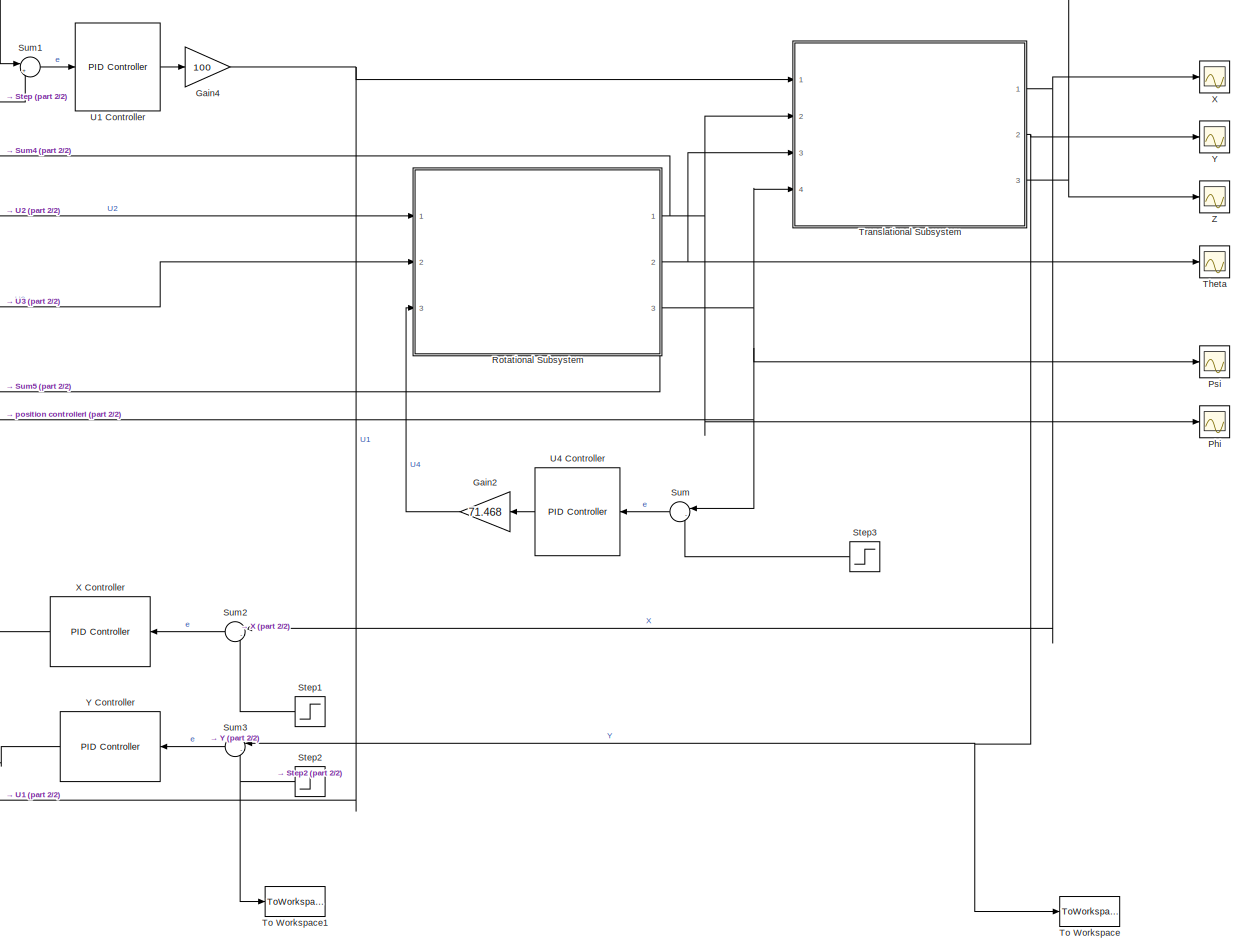
[diagram: root canvas - part 1/2, right side, full height]
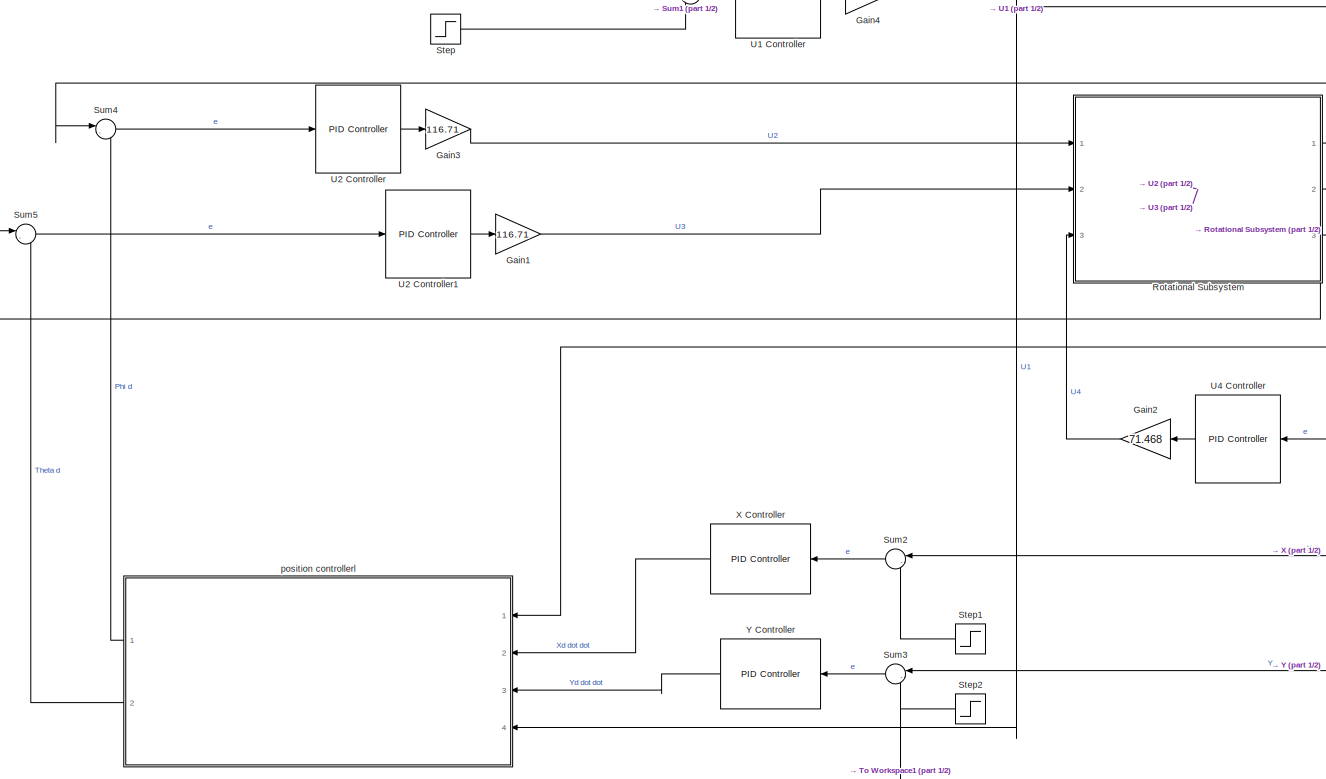
[diagram: root canvas - part 2/2, center side, full height]
MODEL slx_e11bd111b1ae
KIND model
CONFIG AbsTol = auto
CONFIG EnableMultiTasking = off
CONFIG FixedStep = auto
CONFIG MaxStep = auto
CONFIG MinStep = auto
CONFIG RelTol = 1e-3
CONFIG SampleTimeConstraint = Unconstrained
CONFIG Solver = VariableStepAuto
CONFIG SolverName = VariableStepAuto
CONFIG StartTime = 0.0
CONFIG StopTime = 10.0
BLOCK [Gain] Gain1
  Gain = 116.71
  OutDataTypeStr = Inherit: Inherit via internal rule
  ParamDataTypeStr = Inherit: Inherit via internal rule
  SaturateOnIntegerOverflow = off
BLOCK [Gain] Gain2
  Gain = 71.468
  OutDataTypeStr = Inherit: Inherit via internal rule
  ParamDataTypeStr = Inherit: Inherit via internal rule
  SaturateOnIntegerOverflow = off
BLOCK [Gain] Gain3
  Gain = 116.71
  OutDataTypeStr = Inherit: Inherit via internal rule
  ParamDataTypeStr = Inherit: Inherit via internal rule
  SaturateOnIntegerOverflow = off
BLOCK [Gain] Gain4
  Gain = 100
  OutDataTypeStr = Inherit: Inherit via internal rule
  ParamDataTypeStr = Inherit: Inherit via internal rule
  SaturateOnIntegerOverflow = off
BLOCK [Scope] Phi
  Floating = off
  NumInputPorts = 1
  Ports = [1]
  ScopeSpecificationString = Simulink.scopes.TimeScopeBlockCfg('CurrentConfiguration', extmgr.ConfigurationSet(extmgr.Configuration('Core','General UI',true),extmgr.Configuration('Core','Source UI',true),extmgr.Configuration('Sources','WiredSimulink',true,'DataLoggingVariableName','ScopeData5'),extmgr.Configuration('Visuals','Time Domain',true,'SerializedDisplays',{struct('MinYLimReal','-7.38737','MaxYLimReal','44.1708','YLab...<+1411ch>
BLOCK [Scope] Psi
  Floating = off
  NumInputPorts = 1
  Ports = [1]
  ScopeSpecificationString = Simulink.scopes.TimeScopeBlockCfg('CurrentConfiguration', extmgr.ConfigurationSet(extmgr.Configuration('Core','General UI',true),extmgr.Configuration('Core','Source UI',true),extmgr.Configuration('Sources','WiredSimulink',true,'DataLoggingVariableName','ScopeData3'),extmgr.Configuration('Visuals','Time Domain',true,'SerializedDisplays',{struct('MinYLimReal','-0.01254','MaxYLimReal','0.11284','YLab...<+1411ch>
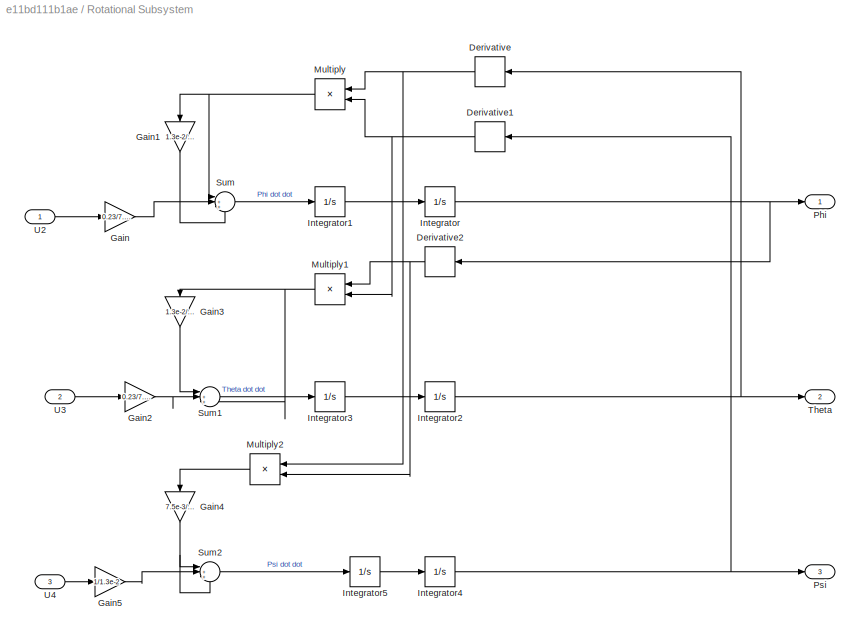
BLOCK [SubSystem] Rotational Subsystem 
  Ports = [3, 3]
  RequestExecContextInheritance = off
BLOCK [Derivative] Rotational Subsystem /Derivative
BLOCK [Derivative] Rotational Subsystem /Derivative1
BLOCK [Derivative] Rotational Subsystem /Derivative2
BLOCK [Gain] Rotational Subsystem /Gain
  Gain = 0.23/7.5e-3
  OutDataTypeStr = Inherit: Inherit via internal rule
  ParamDataTypeStr = Inherit: Inherit via internal rule
  SaturateOnIntegerOverflow = off
BLOCK [Gain] Rotational Subsystem /Gain1
  Gain = 1.3e-2/7.5e-3
  OutDataTypeStr = Inherit: Inherit via internal rule
  ParamDataTypeStr = Inherit: Inherit via internal rule
  SaturateOnIntegerOverflow = off
BLOCK [Gain] Rotational Subsystem /Gain2
  Gain = 0.23/7.5e-3
  OutDataTypeStr = Inherit: Inherit via internal rule
  ParamDataTypeStr = Inherit: Inherit via internal rule
  SaturateOnIntegerOverflow = off
BLOCK [Gain] Rotational Subsystem /Gain3
  Gain = 1.3e-2/7.5e-3
  OutDataTypeStr = Inherit: Inherit via internal rule
  ParamDataTypeStr = Inherit: Inherit via internal rule
  SaturateOnIntegerOverflow = off
BLOCK [Gain] Rotational Subsystem /Gain4
  Gain = 7.5e-3/1.3e-2
  OutDataTypeStr = Inherit: Inherit via internal rule
  ParamDataTypeStr = Inherit: Inherit via internal rule
  SaturateOnIntegerOverflow = off
BLOCK [Gain] Rotational Subsystem /Gain5
  Gain = 1/1.3e-2
  OutDataTypeStr = Inherit: Inherit via internal rule
  ParamDataTypeStr = Inherit: Inherit via internal rule
  SaturateOnIntegerOverflow = off
BLOCK [Integrator] Rotational Subsystem /Integrator
  Ports = [1, 1]
BLOCK [Integrator] Rotational Subsystem /Integrator1
  Ports = [1, 1]
BLOCK [Integrator] Rotational Subsystem /Integrator2
  Ports = [1, 1]
BLOCK [Integrator] Rotational Subsystem /Integrator3
  Ports = [1, 1]
BLOCK [Integrator] Rotational Subsystem /Integrator4
  Ports = [1, 1]
BLOCK [Integrator] Rotational Subsystem /Integrator5
  Ports = [1, 1]
BLOCK [Product] Rotational Subsystem /Multiply
  InputSameDT = off
  OutDataTypeStr = Inherit: Inherit via internal rule
  Ports = [2, 1]
  RndMeth = Floor
  SaturateOnIntegerOverflow = off
BLOCK [Product] Rotational Subsystem /Multiply1
  InputSameDT = off
  OutDataTypeStr = Inherit: Inherit via internal rule
  Ports = [2, 1]
  RndMeth = Floor
  SaturateOnIntegerOverflow = off
BLOCK [Product] Rotational Subsystem /Multiply2
  InputSameDT = off
  OutDataTypeStr = Inherit: Inherit via internal rule
  Ports = [2, 1]
  RndMeth = Floor
  SaturateOnIntegerOverflow = off
BLOCK [Outport] Rotational Subsystem /Phi
  IconDisplay = Port number
BLOCK [Outport] Rotational Subsystem /Psi 
  IconDisplay = Port number
  Port = 3
BLOCK [Sum] Rotational Subsystem /Sum
  IconShape = round
  InputSameDT = off
  Inputs = |++-
  OutDataTypeStr = Inherit: Inherit via internal rule
  Ports = [3, 1]
  SaturateOnIntegerOverflow = off
BLOCK [Sum] Rotational Subsystem /Sum1
  IconShape = round
  InputSameDT = off
  Inputs = |++-
  OutDataTypeStr = Inherit: Inherit via internal rule
  Ports = [3, 1]
  SaturateOnIntegerOverflow = off
BLOCK [Sum] Rotational Subsystem /Sum2
  IconShape = round
  InputSameDT = off
  Inputs = |++-
  OutDataTypeStr = Inherit: Inherit via internal rule
  Ports = [3, 1]
  SaturateOnIntegerOverflow = off
BLOCK [Outport] Rotational Subsystem /Theta
  IconDisplay = Port number
  Port = 2
BLOCK [Inport] Rotational Subsystem /U2
  IconDisplay = Port number
BLOCK [Inport] Rotational Subsystem /U3
  IconDisplay = Port number
  Port = 2
BLOCK [Inport] Rotational Subsystem /U4
  IconDisplay = Port number
  Port = 3
BLOCK [Step] Step
  After = -1
  SampleTime = 0
  Time = 0
BLOCK [Step] Step1
  SampleTime = 0
  Time = 0
BLOCK [Step] Step2
  SampleTime = 0
  Time = 0
BLOCK [Step] Step3
  After = .0872
  SampleTime = 0
  Time = 0
BLOCK [Sum] Sum
  IconShape = round
  InputSameDT = off
  Inputs = |-+
  OutDataTypeStr = Inherit: Inherit via internal rule
  Ports = [2, 1]
  SaturateOnIntegerOverflow = off
BLOCK [Sum] Sum1
  IconShape = round
  InputSameDT = off
  Inputs = |+-
  OutDataTypeStr = Inherit: Inherit via internal rule
  Ports = [2, 1]
  SaturateOnIntegerOverflow = off
BLOCK [Sum] Sum2
  IconShape = round
  InputSameDT = off
  Inputs = |-+
  OutDataTypeStr = Inherit: Inherit via internal rule
  Ports = [2, 1]
  SaturateOnIntegerOverflow = off
BLOCK [Sum] Sum3
  IconShape = round
  InputSameDT = off
  Inputs = |-+
  OutDataTypeStr = Inherit: Inherit via internal rule
  Ports = [2, 1]
  SaturateOnIntegerOverflow = off
BLOCK [Sum] Sum4
  IconShape = round
  InputSameDT = off
  Inputs = |-+
  OutDataTypeStr = Inherit: Inherit via internal rule
  Ports = [2, 1]
  SaturateOnIntegerOverflow = off
BLOCK [Sum] Sum5
  IconShape = round
  InputSameDT = off
  Inputs = |-+
  OutDataTypeStr = Inherit: Inherit via internal rule
  Ports = [2, 1]
  SaturateOnIntegerOverflow = off
BLOCK [Scope] Theta
  Floating = off
  NumInputPorts = 1
  Ports = [1]
  ScopeSpecificationString = Simulink.scopes.TimeScopeBlockCfg('CurrentConfiguration', extmgr.ConfigurationSet(extmgr.Configuration('Core','General UI',true),extmgr.Configuration('Core','Source UI',true),extmgr.Configuration('Sources','WiredSimulink',true,'DataLoggingVariableName','ScopeData4'),extmgr.Configuration('Visuals','Time Domain',true,'SerializedDisplays',{struct('MinYLimReal','-42.87973','MaxYLimReal','7.18185','YLa...<+1415ch>
BLOCK [ToWorkspace] To Workspace
  FixptAsFi = on
  MaxDataPoints = inf
  Ports = [1]
  SampleTime = -1
  Save2DSignal = 3-D array (concatenate along third dimension)
  VariableName = y_out
BLOCK [ToWorkspace] To Workspace1
  FixptAsFi = on
  MaxDataPoints = inf
  Ports = [1]
  SampleTime = -1
  Save2DSignal = 3-D array (concatenate along third dimension)
  VariableName = y_desired
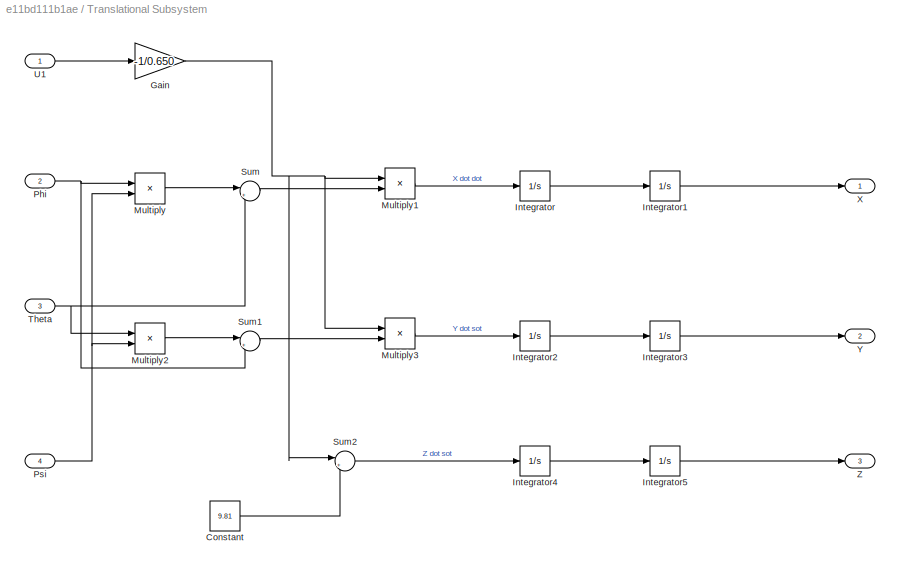
BLOCK [SubSystem] Translational Subsystem 
  Ports = [4, 3]
  RequestExecContextInheritance = off
BLOCK [Constant] Translational Subsystem /Constant
  Value = 9.81
BLOCK [Gain] Translational Subsystem /Gain
  Gain = -1/0.650
  OutDataTypeStr = Inherit: Inherit via internal rule
  ParamDataTypeStr = Inherit: Inherit via internal rule
  SaturateOnIntegerOverflow = off
BLOCK [Integrator] Translational Subsystem /Integrator
  Ports = [1, 1]
BLOCK [Integrator] Translational Subsystem /Integrator1
  Ports = [1, 1]
BLOCK [Integrator] Translational Subsystem /Integrator2
  Ports = [1, 1]
BLOCK [Integrator] Translational Subsystem /Integrator3
  Ports = [1, 1]
BLOCK [Integrator] Translational Subsystem /Integrator4
  Ports = [1, 1]
BLOCK [Integrator] Translational Subsystem /Integrator5
  Ports = [1, 1]
BLOCK [Product] Translational Subsystem /Multiply
  InputSameDT = off
  OutDataTypeStr = Inherit: Inherit via internal rule
  Ports = [2, 1]
  RndMeth = Floor
  SaturateOnIntegerOverflow = off
BLOCK [Product] Translational Subsystem /Multiply1
  InputSameDT = off
  OutDataTypeStr = Inherit: Inherit via internal rule
  Ports = [2, 1]
  RndMeth = Floor
  SaturateOnIntegerOverflow = off
BLOCK [Product] Translational Subsystem /Multiply2
  InputSameDT = off
  OutDataTypeStr = Inherit: Inherit via internal rule
  Ports = [2, 1]
  RndMeth = Floor
  SaturateOnIntegerOverflow = off
BLOCK [Product] Translational Subsystem /Multiply3
  InputSameDT = off
  OutDataTypeStr = Inherit: Inherit via internal rule
  Ports = [2, 1]
  RndMeth = Floor
  SaturateOnIntegerOverflow = off
BLOCK [Inport] Translational Subsystem /Phi
  IconDisplay = Port number
  Port = 2
BLOCK [Inport] Translational Subsystem /Psi 
  IconDisplay = Port number
  Port = 4
BLOCK [Sum] Translational Subsystem /Sum
  IconShape = round
  InputSameDT = off
  Inputs = |++
  OutDataTypeStr = Inherit: Inherit via internal rule
  Ports = [2, 1]
  SaturateOnIntegerOverflow = off
BLOCK [Sum] Translational Subsystem /Sum1
  IconShape = round
  InputSameDT = off
  Inputs = |+-
  OutDataTypeStr = Inherit: Inherit via internal rule
  Ports = [2, 1]
  SaturateOnIntegerOverflow = off
BLOCK [Sum] Translational Subsystem /Sum2
  IconShape = round
  InputSameDT = off
  Inputs = |++
  OutDataTypeStr = Inherit: Inherit via internal rule
  Ports = [2, 1]
  SaturateOnIntegerOverflow = off
BLOCK [Inport] Translational Subsystem /Theta
  IconDisplay = Port number
  Port = 3
BLOCK [Inport] Translational Subsystem /U1
  IconDisplay = Port number
BLOCK [Outport] Translational Subsystem /X
  IconDisplay = Port number
BLOCK [Outport] Translational Subsystem /Y
  IconDisplay = Port number
  Port = 2
BLOCK [Outport] Translational Subsystem /Z
  IconDisplay = Port number
  Port = 3
BLOCK [Reference] U1 Controller  REF=simulink/Continuous/PID Controller
  Ports = [1, 1]
  SourceBlock = simulink/Continuous/PID Controller
  SourceProductBaseCode = SL
  SourceProductName = Simulink
  SourceType = PID 1dof
BLOCK [Reference] U2 Controller  REF=simulink/Continuous/PID Controller
  Ports = [1, 1]
  SourceBlock = simulink/Continuous/PID Controller
  SourceProductBaseCode = SL
  SourceProductName = Simulink
  SourceType = PID 1dof
BLOCK [Reference] U2 Controller1  REF=simulink/Continuous/PID Controller
  Ports = [1, 1]
  SourceBlock = simulink/Continuous/PID Controller
  SourceProductBaseCode = SL
  SourceProductName = Simulink
  SourceType = PID 1dof
BLOCK [Reference] U4 Controller  REF=simulink/Continuous/PID Controller
  Ports = [1, 1]
  SourceBlock = simulink/Continuous/PID Controller
  SourceProductBaseCode = SL
  SourceProductName = Simulink
  SourceType = PID 1dof
BLOCK [Scope] X
  Floating = off
  NumInputPorts = 1
  Ports = [1]
  ScopeSpecificationString = Simulink.scopes.TimeScopeBlockCfg('CurrentConfiguration', extmgr.ConfigurationSet(extmgr.Configuration('Core','General UI',true),extmgr.Configuration('Core','Source UI',true),extmgr.Configuration('Sources','WiredSimulink',true,'DataLoggingVariableName','ScopeData2'),extmgr.Configuration('Visuals','Time Domain',true,'SerializedDisplays',{struct('MinYLimReal','-0.14369','MaxYLimReal','1.29317','YLab...<+1746ch>
BLOCK [Reference] X Controller  REF=simulink/Continuous/PID Controller
  Ports = [1, 1]
  SourceBlock = simulink/Continuous/PID Controller
  SourceProductBaseCode = SL
  SourceProductName = Simulink
  SourceType = PID 1dof
BLOCK [Scope] Y
  Floating = off
  NumInputPorts = 1
  Ports = [1]
  ScopeSpecificationString = Simulink.scopes.TimeScopeBlockCfg('CurrentConfiguration', extmgr.ConfigurationSet(extmgr.Configuration('Core','General UI',true),extmgr.Configuration('Core','Source UI',true),extmgr.Configuration('Sources','WiredSimulink',true,'DataLoggingVariableName','ScopeData1'),extmgr.Configuration('Visuals','Time Domain',true,'SerializedDisplays',{struct('MinYLimReal','-0.15229','MaxYLimReal','1.37065','YLab...<+1697ch>
BLOCK [Reference] Y Controller  REF=simulink/Continuous/PID Controller
  Ports = [1, 1]
  SourceBlock = simulink/Continuous/PID Controller
  SourceProductBaseCode = SL
  SourceProductName = Simulink
  SourceType = PID 1dof
BLOCK [Scope] Z
  Floating = off
  NumInputPorts = 1
  Ports = [1]
  ScopeSpecificationString = Simulink.scopes.TimeScopeBlockCfg('CurrentConfiguration', extmgr.ConfigurationSet(extmgr.Configuration('Core','General UI',true),extmgr.Configuration('Core','Source UI',true),extmgr.Configuration('Sources','WiredSimulink',true),extmgr.Configuration('Visuals','Time Domain',true,'SerializedDisplays',{struct('MinYLimReal','-1.20457','MaxYLimReal','0.13384','YLabelReal','','MinYLimMag','0.00000','MaxY...<+1686ch>
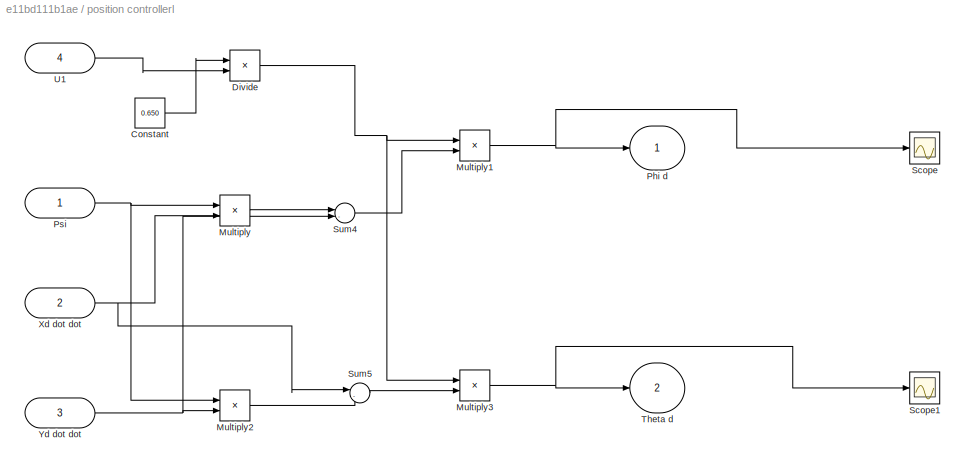
BLOCK [SubSystem] position controllerl 
  Ports = [4, 2]
  RequestExecContextInheritance = off
BLOCK [Constant] position controllerl /Constant
  Value = 0.650
BLOCK [Product] position controllerl /Divide
  InputSameDT = off
  Inputs = */
  OutDataTypeStr = Inherit: Inherit via internal rule
  Ports = [2, 1]
  RndMeth = Floor
  SaturateOnIntegerOverflow = off
BLOCK [Product] position controllerl /Multiply
  InputSameDT = off
  OutDataTypeStr = Inherit: Inherit via internal rule
  Ports = [2, 1]
  RndMeth = Floor
  SaturateOnIntegerOverflow = off
BLOCK [Product] position controllerl /Multiply1
  InputSameDT = off
  OutDataTypeStr = Inherit: Inherit via internal rule
  Ports = [2, 1]
  RndMeth = Floor
  SaturateOnIntegerOverflow = off
BLOCK [Product] position controllerl /Multiply2
  InputSameDT = off
  OutDataTypeStr = Inherit: Inherit via internal rule
  Ports = [2, 1]
  RndMeth = Floor
  SaturateOnIntegerOverflow = off
BLOCK [Product] position controllerl /Multiply3
  InputSameDT = off
  OutDataTypeStr = Inherit: Inherit via internal rule
  Ports = [2, 1]
  RndMeth = Floor
  SaturateOnIntegerOverflow = off
BLOCK [Outport] position controllerl /Phi d
  IconDisplay = Port number
BLOCK [Inport] position controllerl /Psi
  IconDisplay = Port number
BLOCK [Scope] position controllerl /Scope
  Floating = off
  NumInputPorts = 1
  Ports = [1]
  ScopeSpecificationString = Simulink.scopes.TimeScopeBlockCfg('CurrentConfiguration', extmgr.ConfigurationSet(extmgr.Configuration('Core','General UI',true),extmgr.Configuration('Core','Source UI',true),extmgr.Configuration('Sources','WiredSimulink',true,'DataLoggingVariableName','ScopeData1'),extmgr.Configuration('Visuals','Time Domain',true,'SerializedDisplays',{struct('MinYLimReal','-11652584840183.58984','MaxYLimReal','1...<+1470ch>
BLOCK [Scope] position controllerl /Scope1
  Floating = off
  NumInputPorts = 1
  Ports = [1]
  ScopeSpecificationString = Simulink.scopes.TimeScopeBlockCfg('CurrentConfiguration', extmgr.ConfigurationSet(extmgr.Configuration('Core','General UI',true),extmgr.Configuration('Core','Source UI',true),extmgr.Configuration('Sources','WiredSimulink',true,'DataLoggingVariableName','ScopeData2'),extmgr.Configuration('Visuals','Time Domain',true,'SerializedDisplays',{struct('MinYLimReal','-25128030105820.625','MaxYLimReal','152...<+1462ch>
BLOCK [Sum] position controllerl /Sum4
  IconShape = round
  InputSameDT = off
  Inputs = |-+
  OutDataTypeStr = Inherit: Inherit via internal rule
  Ports = [2, 1]
  SaturateOnIntegerOverflow = off
BLOCK [Sum] position controllerl /Sum5
  IconShape = round
  InputSameDT = off
  Inputs = |--
  OutDataTypeStr = Inherit: Inherit via internal rule
  Ports = [2, 1]
  SaturateOnIntegerOverflow = off
BLOCK [Outport] position controllerl /Theta d
  IconDisplay = Port number
  Port = 2
BLOCK [Inport] position controllerl /U1
  IconDisplay = Port number
  Port = 4
BLOCK [Inport] position controllerl /Xd dot dot
  IconDisplay = Port number
  Port = 2
BLOCK [Inport] position controllerl /Yd dot dot 
  IconDisplay = Port number
  Port = 3
LINE Gain1:1 -> Rotational Subsystem :2
LINE Gain2:1 -> Rotational Subsystem :3
LINE Gain3:1 -> Rotational Subsystem :1
NET Gain4:1 -> Translational Subsystem :1, position controllerl :4
NET Rotational Subsystem /Derivative1:1 -> Rotational Subsystem /Multiply1:2, Rotational Subsystem /Multiply:2
NET Rotational Subsystem /Derivative2:1 -> Rotational Subsystem /Multiply1:1, Rotational Subsystem /Multiply2:2
NET Rotational Subsystem /Derivative:1 -> Rotational Subsystem /Multiply2:1, Rotational Subsystem /Multiply:1
LINE Rotational Subsystem /Gain1:1 -> Rotational Subsystem /Sum:3
LINE Rotational Subsystem /Gain2:1 -> Rotational Subsystem /Sum1:2
LINE Rotational Subsystem /Gain3:1 -> Rotational Subsystem /Sum1:1
NET Rotational Subsystem /Gain4:1 -> Rotational Subsystem /Sum2:1, Rotational Subsystem /Sum2:3
LINE Rotational Subsystem /Gain5:1 -> Rotational Subsystem /Sum2:2
LINE Rotational Subsystem /Gain:1 -> Rotational Subsystem /Sum:2
LINE Rotational Subsystem /Integrator1:1 -> Rotational Subsystem /Integrator:1
NET Rotational Subsystem /Integrator2:1 -> Rotational Subsystem /Derivative:1, Rotational Subsystem /Theta:1
LINE Rotational Subsystem /Integrator3:1 -> Rotational Subsystem /Integrator2:1
NET Rotational Subsystem /Integrator4:1 -> Rotational Subsystem /Derivative1:1, Rotational Subsystem /Psi :1
LINE Rotational Subsystem /Integrator5:1 -> Rotational Subsystem /Integrator4:1
NET Rotational Subsystem /Integrator:1 -> Rotational Subsystem /Derivative2:1, Rotational Subsystem /Phi:1
NET Rotational Subsystem /Multiply1:1 -> Rotational Subsystem /Gain3:1, Rotational Subsystem /Sum1:3
LINE Rotational Subsystem /Multiply2:1 -> Rotational Subsystem /Gain4:1
NET Rotational Subsystem /Multiply:1 -> Rotational Subsystem /Gain1:1, Rotational Subsystem /Sum:1
LINE Rotational Subsystem /Sum1:1 -> Rotational Subsystem /Integrator3:1
LINE Rotational Subsystem /Sum2:1 -> Rotational Subsystem /Integrator5:1
LINE Rotational Subsystem /Sum:1 -> Rotational Subsystem /Integrator1:1
LINE Rotational Subsystem /U2:1 -> Rotational Subsystem /Gain:1
LINE Rotational Subsystem /U3:1 -> Rotational Subsystem /Gain2:1
LINE Rotational Subsystem /U4:1 -> Rotational Subsystem /Gain5:1
NET Rotational Subsystem :1 -> Phi:1, Sum4:1, Translational Subsystem :2
NET Rotational Subsystem :2 -> Sum5:1, Theta:1, Translational Subsystem :3
NET Rotational Subsystem :3 -> Psi:1, Sum:1, Translational Subsystem :4, position controllerl :1
LINE Step1:1 -> Sum2:2
NET Step2:1 -> Sum3:2, To Workspace1:1
LINE Step3:1 -> Sum:2
LINE Step:1 -> Sum1:2
LINE Sum1:1 -> U1 Controller:1
LINE Sum2:1 -> X Controller:1
LINE Sum3:1 -> Y Controller:1
LINE Sum4:1 -> U2 Controller:1
LINE Sum5:1 -> U2 Controller1:1
LINE Sum:1 -> U4 Controller:1
LINE Translational Subsystem /Constant:1 -> Translational Subsystem /Sum2:2
NET Translational Subsystem /Gain:1 -> Translational Subsystem /Multiply1:1, Translational Subsystem /Multiply3:1, Translational Subsystem /Sum2:1
LINE Translational Subsystem /Integrator1:1 -> Translational Subsystem /X:1
LINE Translational Subsystem /Integrator2:1 -> Translational Subsystem /Integrator3:1
LINE Translational Subsystem /Integrator3:1 -> Translational Subsystem /Y:1
LINE Translational Subsystem /Integrator4:1 -> Translational Subsystem /Integrator5:1
LINE Translational Subsystem /Integrator5:1 -> Translational Subsystem /Z:1
LINE Translational Subsystem /Integrator:1 -> Translational Subsystem /Integrator1:1
LINE Translational Subsystem /Multiply1:1 -> Translational Subsystem /Integrator:1
LINE Translational Subsystem /Multiply2:1 -> Translational Subsystem /Sum1:1
LINE Translational Subsystem /Multiply3:1 -> Translational Subsystem /Integrator2:1
LINE Translational Subsystem /Multiply:1 -> Translational Subsystem /Sum:1
NET Translational Subsystem /Phi:1 -> Translational Subsystem /Multiply:1, Translational Subsystem /Sum1:2
NET Translational Subsystem /Psi :1 -> Translational Subsystem /Multiply2:2, Translational Subsystem /Multiply:2
LINE Translational Subsystem /Sum1:1 -> Translational Subsystem /Multiply3:2
LINE Translational Subsystem /Sum2:1 -> Translational Subsystem /Integrator4:1
LINE Translational Subsystem /Sum:1 -> Translational Subsystem /Multiply1:2
NET Translational Subsystem /Theta:1 -> Translational Subsystem /Multiply2:1, Translational Subsystem /Sum:2
LINE Translational Subsystem /U1:1 -> Translational Subsystem /Gain:1
NET Translational Subsystem :1 -> Sum2:1, X:1
NET Translational Subsystem :2 -> Sum3:1, To Workspace:1, Y:1
NET Translational Subsystem :3 -> Sum1:1, Z:1
LINE U1 Controller:1 -> Gain4:1
LINE U2 Controller1:1 -> Gain1:1
LINE U2 Controller:1 -> Gain3:1
LINE U4 Controller:1 -> Gain2:1
LINE X Controller:1 -> position controllerl :2
LINE Y Controller:1 -> position controllerl :3
LINE position controllerl /Constant:1 -> position controllerl /Divide:1
NET position controllerl /Divide:1 -> position controllerl /Multiply1:1, position controllerl /Multiply3:1
NET position controllerl /Multiply1:1 -> position controllerl /Phi d:1, position controllerl /Scope:1
LINE position controllerl /Multiply2:1 -> position controllerl /Sum5:2
NET position controllerl /Multiply3:1 -> position controllerl /Scope1:1, position controllerl /Theta d:1
LINE position controllerl /Multiply:1 -> position controllerl /Sum4:1
NET position controllerl /Psi:1 -> position controllerl /Multiply2:1, position controllerl /Multiply:1
LINE position controllerl /Sum4:1 -> position controllerl /Multiply1:2
LINE position controllerl /Sum5:1 -> position controllerl /Multiply3:2
LINE position controllerl /U1:1 -> position controllerl /Divide:2
NET position controllerl /Xd dot dot:1 -> position controllerl /Multiply:2, position controllerl /Sum5:1
NET position controllerl /Yd dot dot :1 -> position controllerl /Multiply2:2, position controllerl /Sum4:2
LINE position controllerl :1 -> Sum4:2
LINE position controllerl :2 -> Sum5:2
note: NET lines group one-source signal fan-out (src -> all destinations, sorted); 1:1 wires keep LINE
